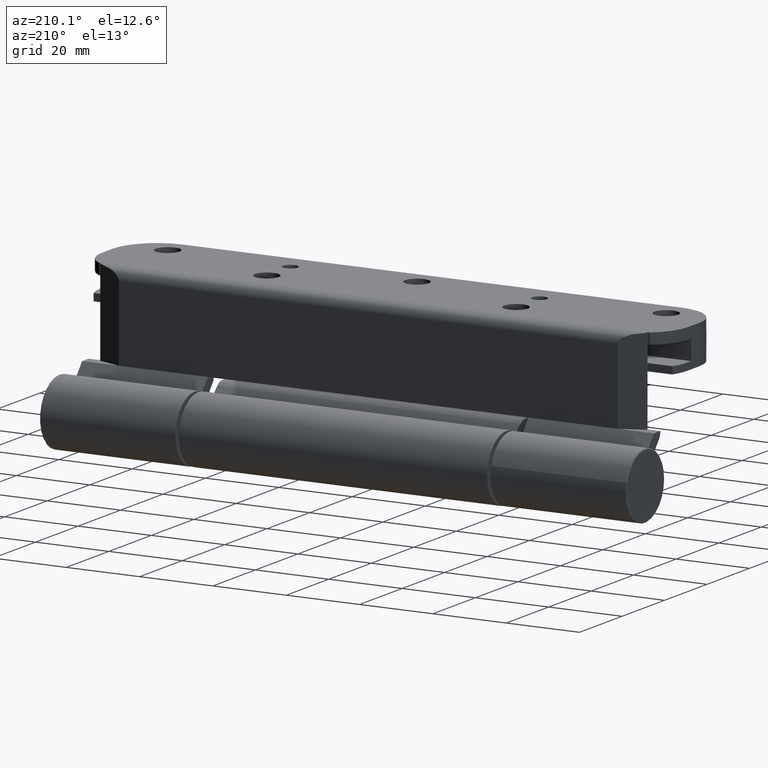
[diagram: clean part render]
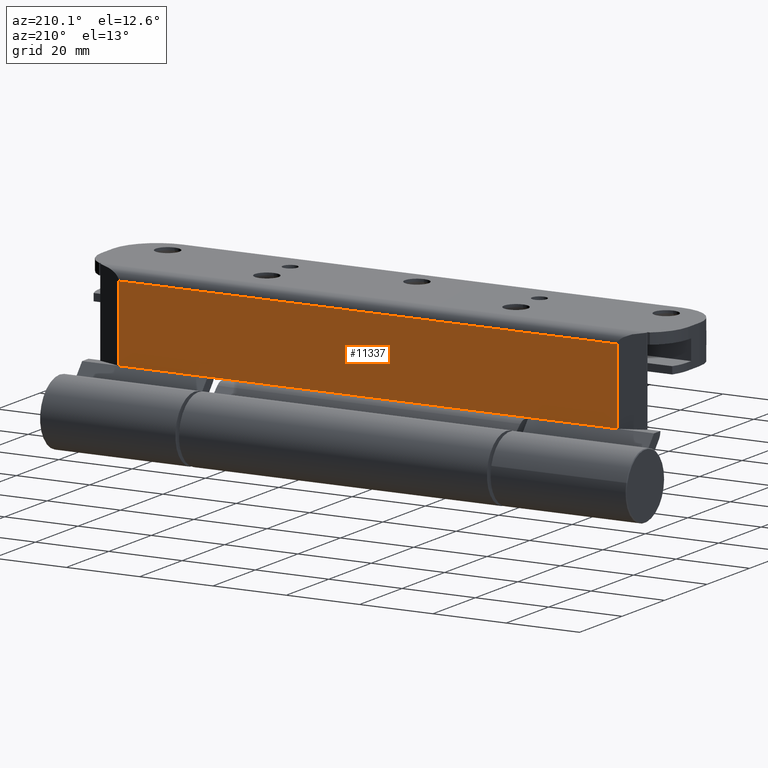
[diagram: same view with one face highlighted and labeled with its STEP entity id]
A machine part, auxiliary view. The second image highlights one B-rep face of the part: STEP entity #11337.
In plain terms, the highlighted planar face has unit normal (0, 1, 0).
Its self-contained STEP definition (entity closure, byte-faithful):
#126 = ORIENTED_EDGE ( 'NONE', *, *, #4425, .T. ) ;
#652 = CARTESIAN_POINT ( 'NONE',  ( -30.00000000000003553, 80.00000000000000000, 23.49962854057411477 ) ) ;
#1387 = CARTESIAN_POINT ( 'NONE',  ( -30.00000000000004263, 68.00063050811014875, 23.49962854057411477 ) ) ;
#2699 = DIRECTION ( 'NONE',  ( -2.016864910455080876E-32, -1.000000000000000000, 4.622231866529366047E-33 ) ) ;
#3250 = AXIS2_PLACEMENT_3D ( 'NONE', #17546, #17322, #17438 ) ;
#3989 = VECTOR ( 'NONE', #19140, 1000.000000000000000 ) ;
#4243 = VECTOR ( 'NONE', #2699, 1000.000000000000000 ) ;
#4425 = EDGE_CURVE ( 'NONE', #15818, #18369, #4734, .T. ) ;
#4506 = CARTESIAN_POINT ( 'NONE',  ( -30.00000000000003553, 80.00000000000000000, 23.49962854057410055 ) ) ;
#4734 = LINE ( 'NONE', #4506, #6409 ) ;
#4805 = VERTEX_POINT ( 'NONE', #14117 ) ;
#5316 = CARTESIAN_POINT ( 'NONE',  ( -30.00000000000003553, 80.00000000000000000, 23.49962854057411477 ) ) ;
#5645 = LINE ( 'NONE', #652, #4243 ) ;
#6174 = PLANE ( 'NONE',  #3250 ) ;
#6409 = VECTOR ( 'NONE', #10998, 1000.000000000000000 ) ;
#6753 = EDGE_CURVE ( 'NONE', #15818, #21072, #5645, .T. ) ;
#8646 = CARTESIAN_POINT ( 'NONE',  ( -30.00000000000002842, 43.75000000000000000, 23.49962854057410055 ) ) ;
#9170 = VERTEX_POINT ( 'NONE', #14521 ) ;
#10063 = EDGE_CURVE ( 'NONE', #9170, #4805, #10744, .T. ) ;
#10130 = VECTOR ( 'NONE', #10646, 1000.000000000000000 ) ;
#10331 = EDGE_CURVE ( 'NONE', #20620, #18369, #13332, .T. ) ;
#10643 = EDGE_CURVE ( 'NONE', #21072, #4805, #19533, .T. ) ;
#10646 = DIRECTION ( 'NONE',  ( -2.016864910455080876E-32, -1.000000000000000000, 4.622231866529366047E-33 ) ) ;
#10707 = LINE ( 'NONE', #12665, #3989 ) ;
#10744 = LINE ( 'NONE', #20919, #10130 ) ;
#10998 = DIRECTION ( 'NONE',  ( 2.016864910455080876E-32, 1.000000000000000000, -4.622231866529366047E-33 ) ) ;
#11337 = ADVANCED_FACE ( 'NONE', ( #16016 ), #6174, .T. ) ;
#11704 = DIRECTION ( 'NONE',  ( -2.016864910455080876E-32, -1.000000000000000000, 4.622231866529366047E-33 ) ) ;
#12009 = CARTESIAN_POINT ( 'NONE',  ( -30.00000000000003553, -43.75000000000000000, 23.49962854057410055 ) ) ;
#12234 = VECTOR ( 'NONE', #20731, 1000.000000000000000 ) ;
#12262 = ORIENTED_EDGE ( 'NONE', *, *, #21023, .F. ) ;
#12665 = CARTESIAN_POINT ( 'NONE',  ( -30.00000000000000000, 68.00063050811016296, 0.000000000000000000 ) ) ;
#12724 = CARTESIAN_POINT ( 'NONE',  ( -30.00000000000000000, -68.00063050811019139, 4.857225732735059864E-14 ) ) ;
#13332 = LINE ( 'NONE', #5316, #16708 ) ;
#14117 = CARTESIAN_POINT ( 'NONE',  ( -30.00000000000000355, -68.00063050811017717, 3.000999999999996781 ) ) ;
#14476 = ORIENTED_EDGE ( 'NONE', *, *, #6753, .F. ) ;
#14521 = CARTESIAN_POINT ( 'NONE',  ( -30.00000000000000355, 68.00063050811010612, 3.001000000000003887 ) ) ;
#15798 = CARTESIAN_POINT ( 'NONE',  ( -30.00000000000004263, -68.00063050811017717, 23.49962854057411477 ) ) ;
#15818 = VERTEX_POINT ( 'NONE', #12009 ) ;
#15963 = ORIENTED_EDGE ( 'NONE', *, *, #10643, .F. ) ;
#16016 = FACE_OUTER_BOUND ( 'NONE', #16415, .T. ) ;
#16415 = EDGE_LOOP ( 'NONE', ( #15963, #14476, #126, #21355, #12262, #16850 ) ) ;
#16708 = VECTOR ( 'NONE', #11704, 1000.000000000000000 ) ;
#16850 = ORIENTED_EDGE ( 'NONE', *, *, #10063, .T. ) ;
#17322 = DIRECTION ( 'NONE',  ( -1.000000000000000000, -2.016864910455080876E-32, -9.322417259590371193E-65 ) ) ;
#17438 = DIRECTION ( 'NONE',  ( 0.000000000000000000, -4.622231866529366047E-33, 1.000000000000000000 ) ) ;
#17546 = CARTESIAN_POINT ( 'NONE',  ( -30.00000000000000000, 80.00000000000000000, 6.938893903907228378E-15 ) ) ;
#18369 = VERTEX_POINT ( 'NONE', #8646 ) ;
#19140 = DIRECTION ( 'NONE',  ( 0.000000000000000000, -3.184081677783118684E-16, 1.000000000000000000 ) ) ;
#19533 = LINE ( 'NONE', #12724, #12234 ) ;
#20620 = VERTEX_POINT ( 'NONE', #1387 ) ;
#20731 = DIRECTION ( 'NONE',  ( 0.000000000000000000, -3.184081677783118684E-16, -1.000000000000000000 ) ) ;
#20919 = CARTESIAN_POINT ( 'NONE',  ( -30.00000000000000711, 80.00000000000000000, 3.001000000000003887 ) ) ;
#21023 = EDGE_CURVE ( 'NONE', #9170, #20620, #10707, .T. ) ;
#21072 = VERTEX_POINT ( 'NONE', #15798 ) ;
#21355 = ORIENTED_EDGE ( 'NONE', *, *, #10331, .F. ) ;